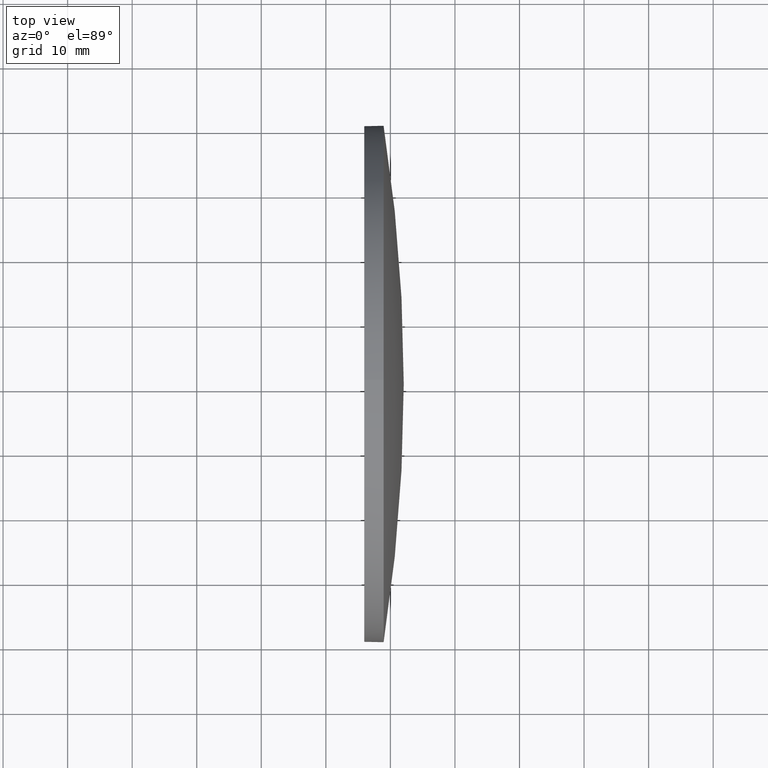
[diagram: clean part render]
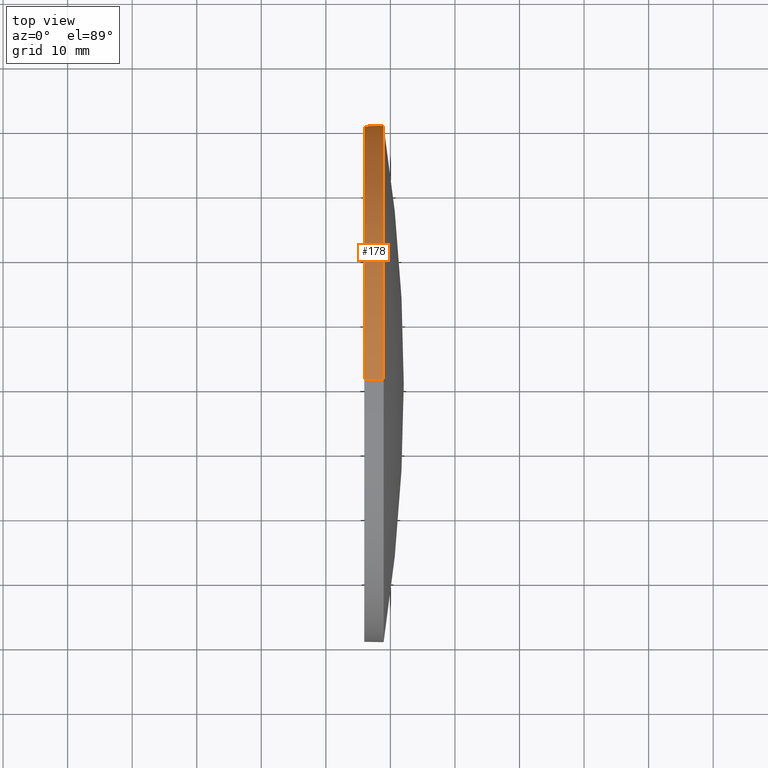
[diagram: same view with one face highlighted and labeled with its STEP entity id]
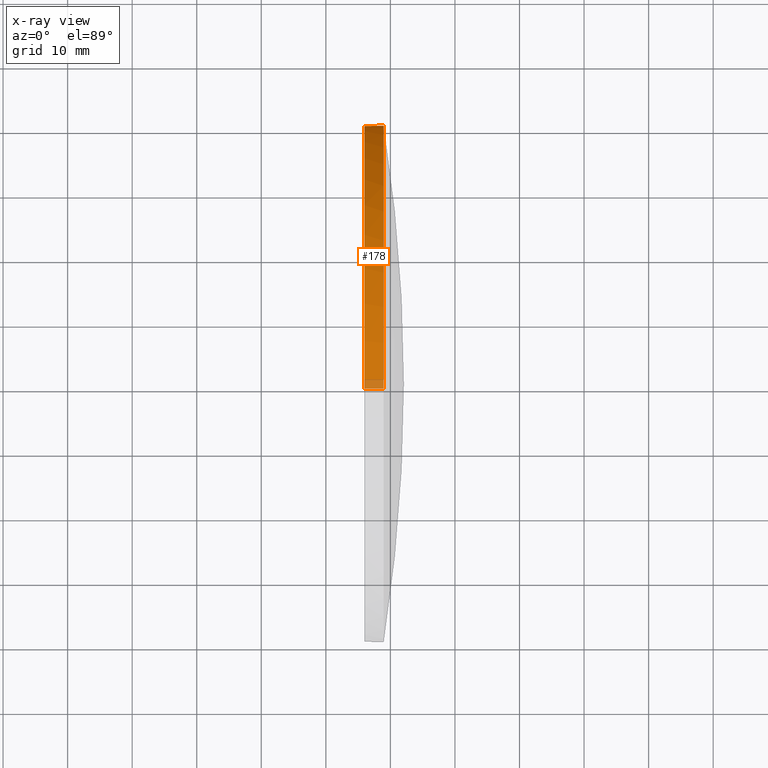
[diagram: x-ray of the same camera — body ghosted, the highlighted face saturated]
A machine part, top view. The second image highlights one B-rep face of the part: STEP entity #178.
The next image is the same camera in x-ray: the body ghosted, the highlighted face saturated — about 3% of this face is hidden behind the body in this view.
In plain terms, the highlighted cylindrical surface (partial cylindrical patch) has radius 40 mm, axis along (-1, -0, -0).
Its self-contained STEP definition (entity closure, byte-faithful):
#2 = DIRECTION ( 'NONE',  ( -1.000000000000000000, -0.0000000000000000000, -0.0000000000000000000 ) ) ;
#3 = CARTESIAN_POINT ( 'NONE',  ( 217.9945825323866300, 130.4671098528244200, 0.0000000000000000000 ) ) ;
#4 = CARTESIAN_POINT ( 'NONE',  ( 217.9945825323866300, 130.4671098528244200, -40.00000000000000700 ) ) ;
#5 = CARTESIAN_POINT ( 'NONE',  ( 228.9490942240209100, 130.4671098528244200, 0.0000000000000000000 ) ) ;
#8 = CIRCLE ( 'NONE', #183, 40.00000000000000700 ) ;
#12 = EDGE_CURVE ( 'NONE', #65, #142, #182, .T. ) ;
#13 = CARTESIAN_POINT ( 'NONE',  ( 225.9490942240209100, 130.4671098528244200, 0.0000000000000000000 ) ) ;
#18 = DIRECTION ( 'NONE',  ( -1.000000000000000000, -0.0000000000000000000, -0.0000000000000000000 ) ) ;
#19 = DIRECTION ( 'NONE',  ( -1.000000000000000000, -0.0000000000000000000, -0.0000000000000000000 ) ) ;
#21 = EDGE_CURVE ( 'NONE', #65, #124, #161, .T. ) ;
#23 = AXIS2_PLACEMENT_3D ( 'NONE', #5, #2, #98 ) ;
#24 = ORIENTED_EDGE ( 'NONE', *, *, #108, .T. ) ;
#27 = AXIS2_PLACEMENT_3D ( 'NONE', #77, #127, #159 ) ;
#30 = CYLINDRICAL_SURFACE ( 'NONE', #63, 40.00000000000000700 ) ;
#31 = CARTESIAN_POINT ( 'NONE',  ( 228.9490942240209100, 170.4671098528244500, 0.0000000000000000000 ) ) ;
#42 = EDGE_CURVE ( 'NONE', #142, #179, #8, .T. ) ;
#45 = VECTOR ( 'NONE', #19, 1000.000000000000000 ) ;
#57 = CARTESIAN_POINT ( 'NONE',  ( 228.9490942240209100, 130.4671098528244200, 40.00000000000000700 ) ) ;
#63 = AXIS2_PLACEMENT_3D ( 'NONE', #3, #100, #146 ) ;
#65 = VERTEX_POINT ( 'NONE', #57 ) ;
#68 = ORIENTED_EDGE ( 'NONE', *, *, #42, .F. ) ;
#77 = CARTESIAN_POINT ( 'NONE',  ( 228.9490942240209100, 130.4671098528244200, 0.0000000000000000000 ) ) ;
#79 = CIRCLE ( 'NONE', #27, 40.00000000000000700 ) ;
#83 = EDGE_CURVE ( 'NONE', #124, #167, #79, .T. ) ;
#91 = DIRECTION ( 'NONE',  ( 0.0000000000000000000, 0.0000000000000000000, 1.000000000000000000 ) ) ;
#95 = ORIENTED_EDGE ( 'NONE', *, *, #12, .F. ) ;
#97 = VECTOR ( 'NONE', #18, 1000.000000000000000 ) ;
#98 = DIRECTION ( 'NONE',  ( 0.0000000000000000000, 0.0000000000000000000, 1.000000000000000000 ) ) ;
#100 = DIRECTION ( 'NONE',  ( -1.000000000000000000, -0.0000000000000000000, -0.0000000000000000000 ) ) ;
#103 = FACE_OUTER_BOUND ( 'NONE', #180, .T. ) ;
#106 = LINE ( 'NONE', #4, #97 ) ;
#108 = EDGE_CURVE ( 'NONE', #167, #179, #106, .T. ) ;
#112 = DIRECTION ( 'NONE',  ( -1.000000000000000000, -0.0000000000000000000, -0.0000000000000000000 ) ) ;
#121 = CARTESIAN_POINT ( 'NONE',  ( 225.9490942240209100, 130.4671098528244200, 40.00000000000000700 ) ) ;
#124 = VERTEX_POINT ( 'NONE', #31 ) ;
#127 = DIRECTION ( 'NONE',  ( -1.000000000000000000, -0.0000000000000000000, -0.0000000000000000000 ) ) ;
#137 = ORIENTED_EDGE ( 'NONE', *, *, #83, .T. ) ;
#142 = VERTEX_POINT ( 'NONE', #121 ) ;
#146 = DIRECTION ( 'NONE',  ( 0.0000000000000000000, 0.0000000000000000000, 1.000000000000000000 ) ) ;
#156 = ORIENTED_EDGE ( 'NONE', *, *, #21, .T. ) ;
#159 = DIRECTION ( 'NONE',  ( 0.0000000000000000000, 0.0000000000000000000, 1.000000000000000000 ) ) ;
#161 = CIRCLE ( 'NONE', #23, 40.00000000000000700 ) ;
#162 = CARTESIAN_POINT ( 'NONE',  ( 217.9945825323866300, 130.4671098528244200, 40.00000000000000700 ) ) ;
#167 = VERTEX_POINT ( 'NONE', #172 ) ;
#171 = CARTESIAN_POINT ( 'NONE',  ( 225.9490942240209100, 130.4671098528244200, -40.00000000000000700 ) ) ;
#172 = CARTESIAN_POINT ( 'NONE',  ( 228.9490942240209100, 130.4671098528244200, -40.00000000000000700 ) ) ;
#178 = ADVANCED_FACE ( 'NONE', ( #103 ), #30, .T. ) ;
#179 = VERTEX_POINT ( 'NONE', #171 ) ;
#180 = EDGE_LOOP ( 'NONE', ( #137, #24, #68, #95, #156 ) ) ;
#182 = LINE ( 'NONE', #162, #45 ) ;
#183 = AXIS2_PLACEMENT_3D ( 'NONE', #13, #112, #91 ) ;